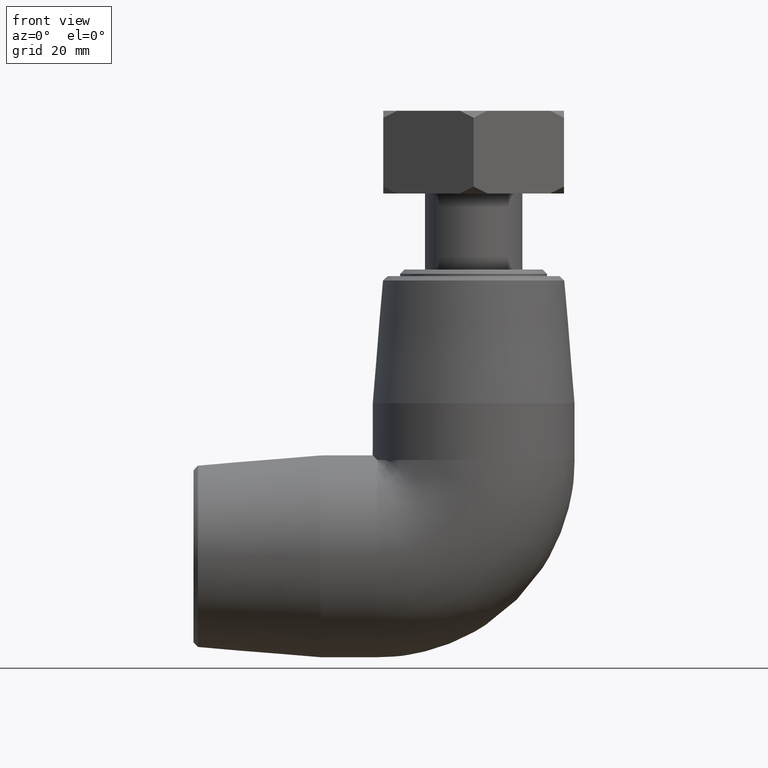
[diagram: clean part render]
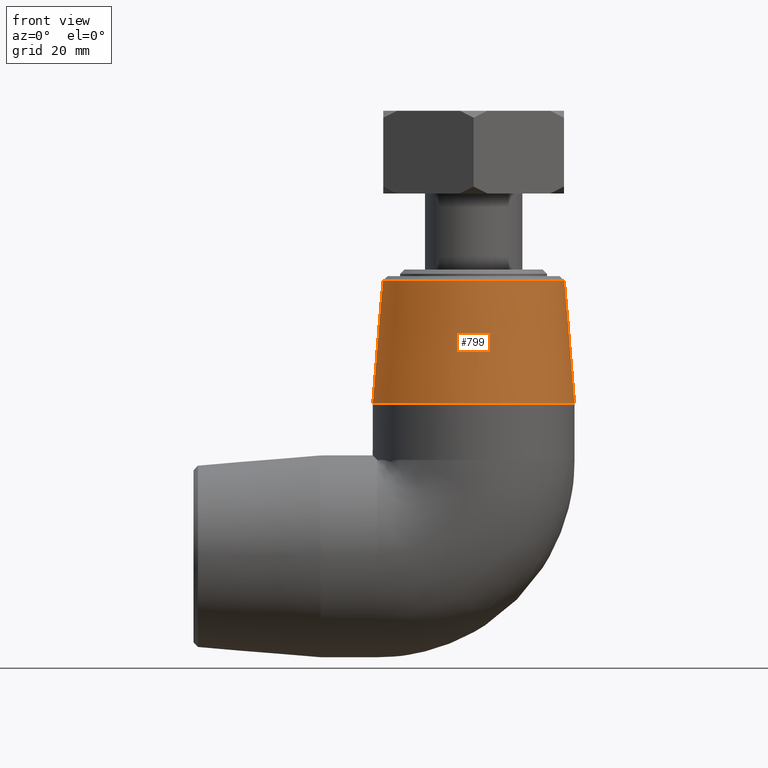
[diagram: same view with one face highlighted and labeled with its STEP entity id]
A machine part, front view. The second image highlights one B-rep face of the part: STEP entity #799.
In plain terms, the highlighted conical surface has half-angle 4.546 deg.
Its self-contained STEP definition (entity closure, byte-faithful):
#18=B_SPLINE_CURVE_WITH_KNOTS('',3,(#1435,#1436,#1437,#1438,#1439,#1440,
#1441,#1442,#1443,#1444,#1445,#1446,#1447,#1448,#1449,#1450,#1451,#1452,
#1453,#1454,#1455,#1456,#1457,#1458,#1459,#1460,#1461,#1462,#1463,#1464,
#1465,#1466,#1467,#1468),.UNSPECIFIED.,.T.,.F.,(4,2,2,2,2,2,2,2,2,2,2,2,
2,2,2,2,4),(0.,0.352700193411278,0.705400386822555,1.06065997794798,1.4159195690734,
1.77117916019882,2.12643875132425,2.47913894473552,2.8318391381468,3.21426147151368,
3.59668380488056,3.96833233978789,4.33998087469521,4.71162940960254,5.08327794450986,
5.46570027787674,5.84812261124363),.UNSPECIFIED.);
#133=FACE_BOUND('',#270,.T.);
#134=FACE_BOUND('',#271,.T.);
#192=FACE_OUTER_BOUND('',#269,.T.);
#269=EDGE_LOOP('',(#687));
#270=EDGE_LOOP('',(#688));
#271=EDGE_LOOP('',(#689));
#351=CIRCLE('',#891,19.8760971426856);
#352=CIRCLE('',#894,22.);
#428=VERTEX_POINT('',#1428);
#429=VERTEX_POINT('',#1432);
#430=VERTEX_POINT('',#1434);
#524=EDGE_CURVE('',#428,#428,#351,.T.);
#525=EDGE_CURVE('',#429,#429,#352,.T.);
#526=EDGE_CURVE('',#430,#430,#18,.T.);
#687=ORIENTED_EDGE('',*,*,#525,.F.);
#688=ORIENTED_EDGE('',*,*,#526,.T.);
#689=ORIENTED_EDGE('',*,*,#524,.F.);
#762=CONICAL_SURFACE('',#893,20.9,4.54648338271799);
#799=ADVANCED_FACE('',(#192,#133,#134),#762,.T.);
#891=AXIS2_PLACEMENT_3D('',#1429,#1084,#1085);
#893=AXIS2_PLACEMENT_3D('',#1431,#1088,#1089);
#894=AXIS2_PLACEMENT_3D('',#1433,#1090,#1091);
#1084=DIRECTION('center_axis',(0.,0.,1.));
#1085=DIRECTION('ref_axis',(-6.12323399573676E-17,-1.,0.));
#1088=DIRECTION('center_axis',(6.12323399573677E-17,-2.27504718160893E-18,
-1.));
#1089=DIRECTION('ref_axis',(0.,1.,0.));
#1090=DIRECTION('center_axis',(6.12323399573677E-17,-2.27504718160893E-18,
-1.));
#1091=DIRECTION('ref_axis',(-1.,0.,-6.12323399573677E-17));
#1428=CARTESIAN_POINT('',(-6.11069453508579E-15,19.8760971426856,60.0430207813776));
#1429=CARTESIAN_POINT('Origin',(-4.8936345978192E-15,0.,60.0430207813776));
#1431=CARTESIAN_POINT('Origin',(-2.88812536798917E-15,-3.14714860122568E-17,
47.1666666666667));
#1432=CARTESIAN_POINT('',(-2.04107799857892E-15,22.,33.3333333333333));
#1433=CARTESIAN_POINT('Origin',(-2.04107799857892E-15,-6.29429720245136E-17,
33.3333333333333));
#1434=CARTESIAN_POINT('',(9.62136636545365,18.6527359345863,46.0602682614864));
#1435=CARTESIAN_POINT('Ctrl Pts',(9.62136636545365,18.6527359345863,46.0602682614863));
#1436=CARTESIAN_POINT('Ctrl Pts',(9.57864474688505,18.5699124519759,47.2322361625234));
#1437=CARTESIAN_POINT('Ctrl Pts',(9.29477438840324,18.6113538782614,48.4680337026871));
#1438=CARTESIAN_POINT('Ctrl Pts',(8.26038237665402,18.8985129488541,50.7113065030737));
#1439=CARTESIAN_POINT('Ctrl Pts',(7.51072157983028,19.1349894938284,51.7203517807895));
#1440=CARTESIAN_POINT('Ctrl Pts',(5.82233956886021,19.5832493329027,53.3069823604728));
#1441=CARTESIAN_POINT('Ctrl Pts',(4.76196036847415,19.8268123115242,53.9955728954431));
#1442=CARTESIAN_POINT('Ctrl Pts',(2.44335638516367,20.1704598428399,54.9119048959261));
#1443=CARTESIAN_POINT('Ctrl Pts',(1.18419863708474,20.266058430284,55.1389621646109));
#1444=CARTESIAN_POINT('Ctrl Pts',(-1.18419863708475,20.266058430284,55.1389621646109));
#1445=CARTESIAN_POINT('Ctrl Pts',(-2.44335638516368,20.1704598428399,54.9119048959261));
#1446=CARTESIAN_POINT('Ctrl Pts',(-4.76196036847416,19.8268123115242,53.9955728954431));
#1447=CARTESIAN_POINT('Ctrl Pts',(-5.82233956886021,19.5832493329027,53.3069823604728));
#1448=CARTESIAN_POINT('Ctrl Pts',(-7.51072157983028,19.1349894938284,51.7203517807895));
#1449=CARTESIAN_POINT('Ctrl Pts',(-8.26038237665403,18.8985129488541,50.7113065030737));
#1450=CARTESIAN_POINT('Ctrl Pts',(-9.29477438840325,18.6113538782614,48.4680337026871));
#1451=CARTESIAN_POINT('Ctrl Pts',(-9.57864474688506,18.5699124519759,47.2322361625234));
#1452=CARTESIAN_POINT('Ctrl Pts',(-9.66768814628455,18.7425389743044,44.7895383108989));
#1453=CARTESIAN_POINT('Ctrl Pts',(-9.43829136894649,18.9862188514755,43.4602629554652));
#1454=CARTESIAN_POINT('Ctrl Pts',(-8.45864045551373,19.651715607722,41.04422898226));
#1455=CARTESIAN_POINT('Ctrl Pts',(-7.70910972441214,20.0639278337078,39.9545419235782));
#1456=CARTESIAN_POINT('Ctrl Pts',(-5.9973309042789,20.7794201420516,38.258689345906));
#1457=CARTESIAN_POINT('Ctrl Pts',(-4.92433911740575,21.134551763808,37.5252883473859));
#1458=CARTESIAN_POINT('Ctrl Pts',(-2.54579354816424,21.6294602695051,36.5414476064506));
#1459=CARTESIAN_POINT('Ctrl Pts',(-1.23882844969108,21.7647203034417,36.2921537597489));
#1460=CARTESIAN_POINT('Ctrl Pts',(1.23882844969108,21.7647203034417,36.2921537597489));
#1461=CARTESIAN_POINT('Ctrl Pts',(2.54579354816424,21.6294602695051,36.5414476064506));
#1462=CARTESIAN_POINT('Ctrl Pts',(4.92433911740575,21.134551763808,37.5252883473859));
#1463=CARTESIAN_POINT('Ctrl Pts',(5.99733090427889,20.7794201420516,38.258689345906));
#1464=CARTESIAN_POINT('Ctrl Pts',(7.70910972441213,20.0639278337078,39.9545419235782));
#1465=CARTESIAN_POINT('Ctrl Pts',(8.45864045551372,19.651715607722,41.04422898226));
#1466=CARTESIAN_POINT('Ctrl Pts',(9.43829136894648,18.9862188514755,43.4602629554652));
#1467=CARTESIAN_POINT('Ctrl Pts',(9.66768814628454,18.7425389743044,44.7895383108988));
#1468=CARTESIAN_POINT('Ctrl Pts',(9.62136636545365,18.6527359345863,46.0602682614863));